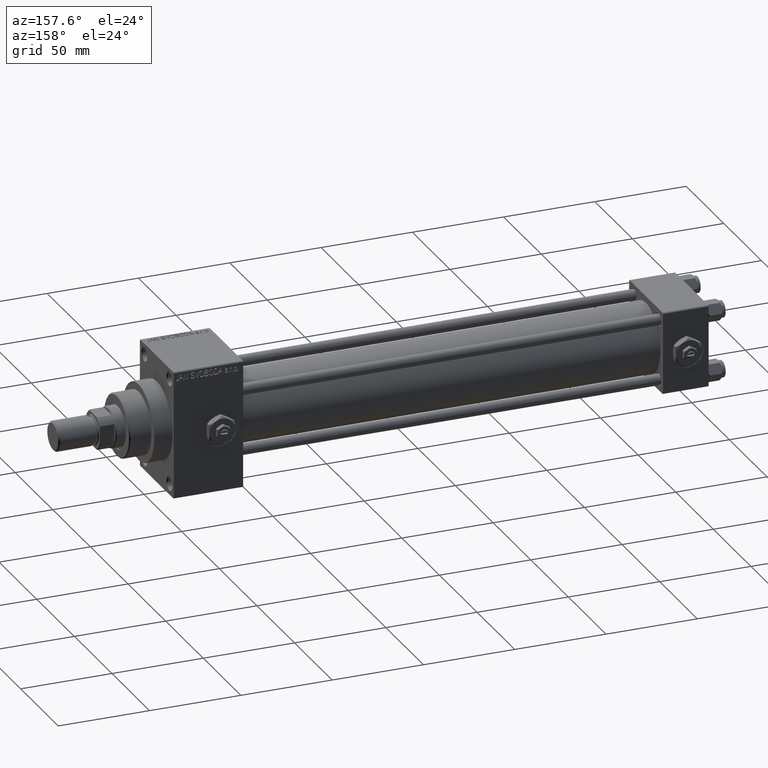
[diagram: clean part render]
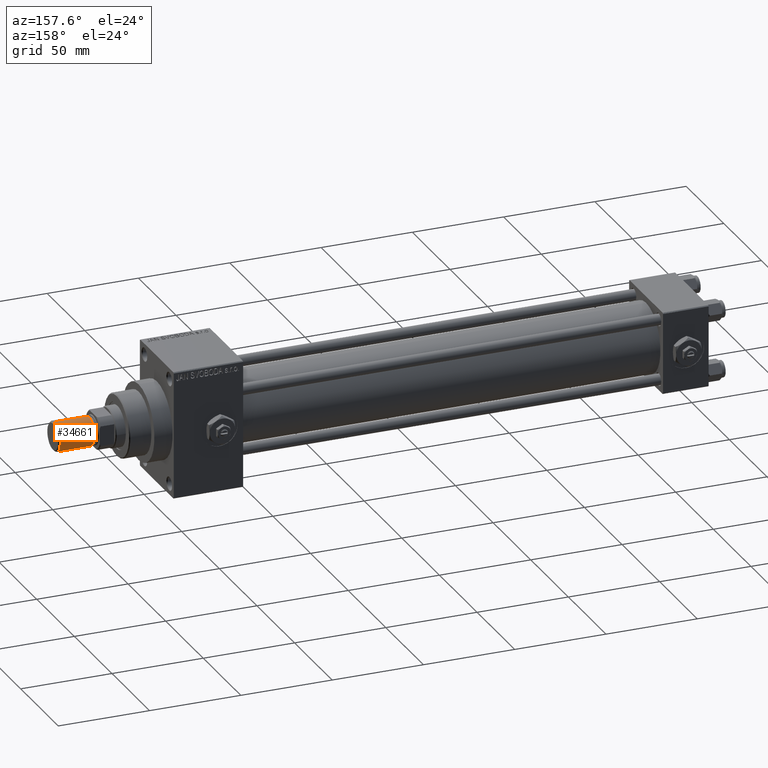
[diagram: same view with one face highlighted and labeled with its STEP entity id]
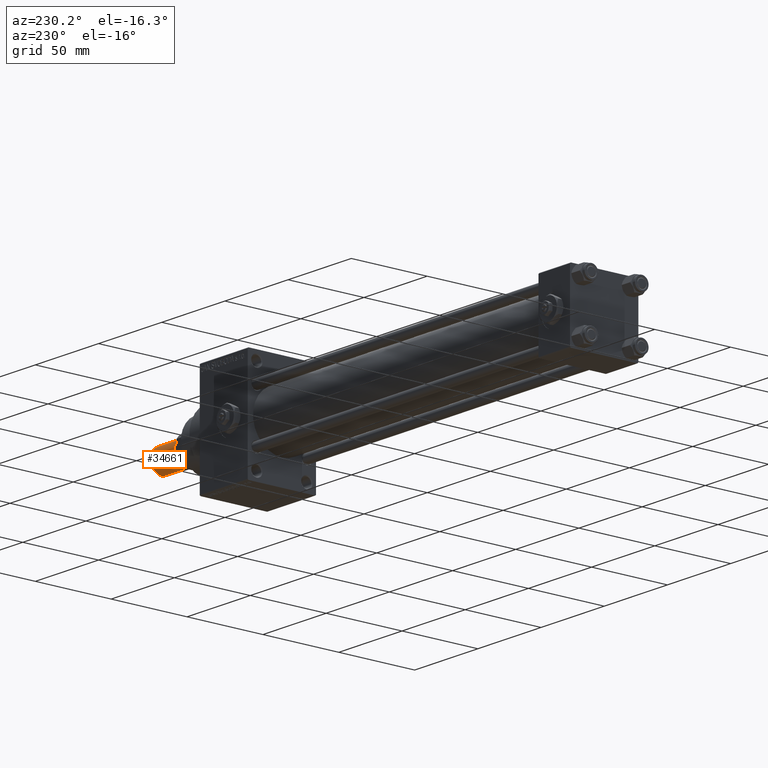
[diagram: same view with one face highlighted and labeled with its STEP entity id]
A machine part, auxiliary view. The second image highlights one B-rep face of the part: STEP entity #34661.
A second angle (auxiliary view) of the same face is appended — the face is thin or edge-on in the first view.
In plain terms, the highlighted cylindrical surface (edge-blend (fillet) strip) has radius 8 mm, axis along (1, -0, -0).
Its self-contained STEP definition (entity closure, byte-faithful):
#137 = ORIENTED_EDGE ( 'NONE', *, *, #46331, .F. ) ;
#854 = DIRECTION ( 'NONE',  ( -1.000000000000000000, 0.000000000000000000, 0.000000000000000000 ) ) ;
#2219 = CARTESIAN_POINT ( 'NONE',  ( -8.000000000000000000, 0.000000000000000000, 0.8000000000000090372 ) ) ;
#2447 = DIRECTION ( 'NONE',  ( 1.000000000000000000, 0.000000000000000000, 0.000000000000000000 ) ) ;
#3396 = VERTEX_POINT ( 'NONE', #19712 ) ;
#4380 = EDGE_LOOP ( 'NONE', ( #137, #21112, #30148, #37832 ) ) ;
#4633 = EDGE_CURVE ( 'NONE', #3396, #5739, #27080, .T. ) ;
#4740 = CARTESIAN_POINT ( 'NONE',  ( 8.000000000000000000, 9.797174393178825657E-16, 0.8000000000000090372 ) ) ;
#5739 = VERTEX_POINT ( 'NONE', #2219 ) ;
#6702 = CARTESIAN_POINT ( 'NONE',  ( 0.000000000000000000, 0.000000000000000000, 19.50000000000000000 ) ) ;
#7033 = VERTEX_POINT ( 'NONE', #16992 ) ;
#13127 = AXIS2_PLACEMENT_3D ( 'NONE', #6702, #21512, #2447 ) ;
#16318 = CARTESIAN_POINT ( 'NONE',  ( -8.000000000000000000, 0.000000000000000000, 19.50000000000000000 ) ) ;
#16992 = CARTESIAN_POINT ( 'NONE',  ( 8.000000000000000000, 9.797174393178825657E-16, 19.50000000000000000 ) ) ;
#19712 = CARTESIAN_POINT ( 'NONE',  ( -8.000000000000000000, 0.000000000000000000, 19.50000000000000000 ) ) ;
#19913 = CARTESIAN_POINT ( 'NONE',  ( 0.000000000000000000, 0.000000000000000000, 19.50000000000000000 ) ) ;
#21112 = ORIENTED_EDGE ( 'NONE', *, *, #24828, .T. ) ;
#21512 = DIRECTION ( 'NONE',  ( 0.000000000000000000, 0.000000000000000000, 1.000000000000000000 ) ) ;
#22572 = AXIS2_PLACEMENT_3D ( 'NONE', #23322, #42361, #23813 ) ;
#23322 = CARTESIAN_POINT ( 'NONE',  ( 0.000000000000000000, 0.000000000000000000, 0.8000000000000090372 ) ) ;
#23338 = DIRECTION ( 'NONE',  ( -0.000000000000000000, -0.000000000000000000, -1.000000000000000000 ) ) ;
#23667 = DIRECTION ( 'NONE',  ( -0.000000000000000000, -0.000000000000000000, -1.000000000000000000 ) ) ;
#23813 = DIRECTION ( 'NONE',  ( 1.000000000000000000, 0.000000000000000000, 0.000000000000000000 ) ) ;
#24828 = EDGE_CURVE ( 'NONE', #7033, #37383, #46385, .T. ) ;
#25450 = VECTOR ( 'NONE', #23338, 1000.000000000000000 ) ;
#26590 = CARTESIAN_POINT ( 'NONE',  ( 8.000000000000000000, 9.797174393178825657E-16, 19.50000000000000000 ) ) ;
#27080 = LINE ( 'NONE', #16318, #40252 ) ;
#30148 = ORIENTED_EDGE ( 'NONE', *, *, #40869, .T. ) ;
#30753 = CIRCLE ( 'NONE', #13127, 8.000000000000000000 ) ;
#31358 = CIRCLE ( 'NONE', #22572, 8.000000000000000000 ) ;
#32163 = FACE_OUTER_BOUND ( 'NONE', #4380, .T. ) ;
#34661 = ADVANCED_FACE ( 'NONE', ( #32163 ), #42703, .T. ) ;
#35255 = AXIS2_PLACEMENT_3D ( 'NONE', #19913, #23667, #854 ) ;
#35341 = DIRECTION ( 'NONE',  ( -0.000000000000000000, -0.000000000000000000, -1.000000000000000000 ) ) ;
#37383 = VERTEX_POINT ( 'NONE', #4740 ) ;
#37832 = ORIENTED_EDGE ( 'NONE', *, *, #4633, .F. ) ;
#40252 = VECTOR ( 'NONE', #35341, 1000.000000000000000 ) ;
#40869 = EDGE_CURVE ( 'NONE', #37383, #5739, #31358, .T. ) ;
#42361 = DIRECTION ( 'NONE',  ( -0.000000000000000000, -0.000000000000000000, 1.000000000000000000 ) ) ;
#42703 = CYLINDRICAL_SURFACE ( 'NONE', #35255, 8.000000000000000000 ) ;
#46331 = EDGE_CURVE ( 'NONE', #7033, #3396, #30753, .T. ) ;
#46385 = LINE ( 'NONE', #26590, #25450 ) ;